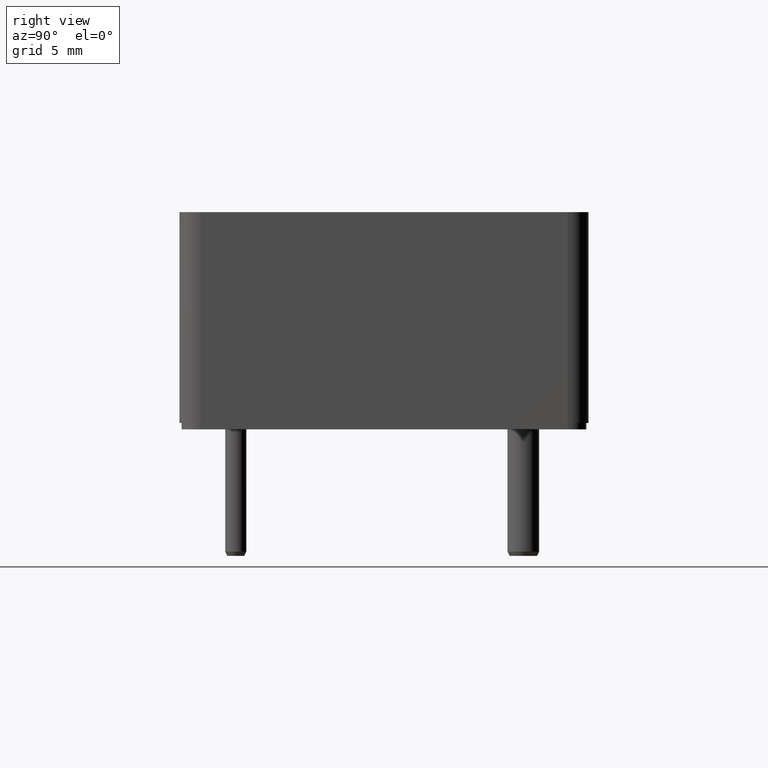
[diagram: clean part render]
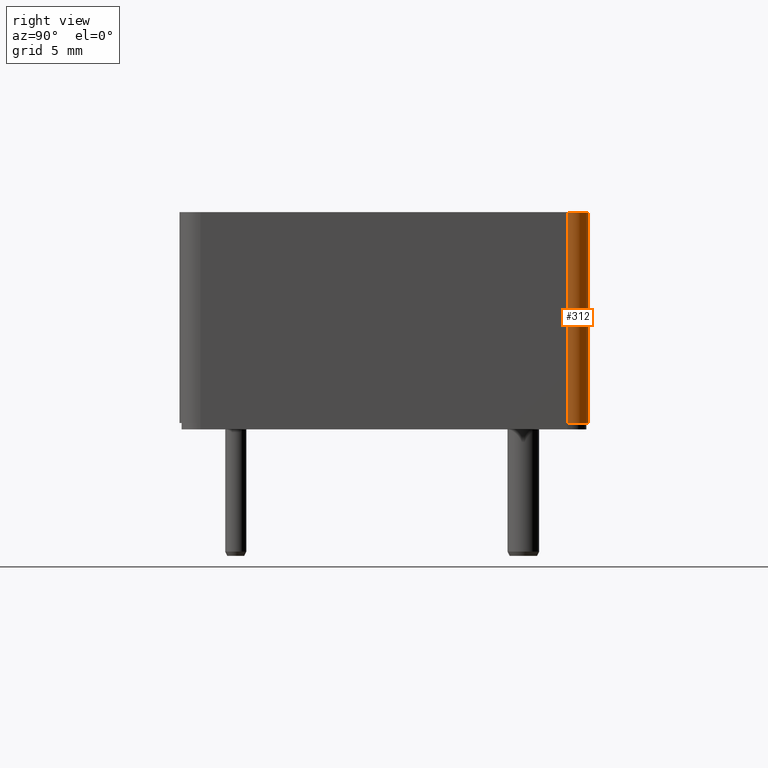
[diagram: same view with one face highlighted and labeled with its STEP entity id]
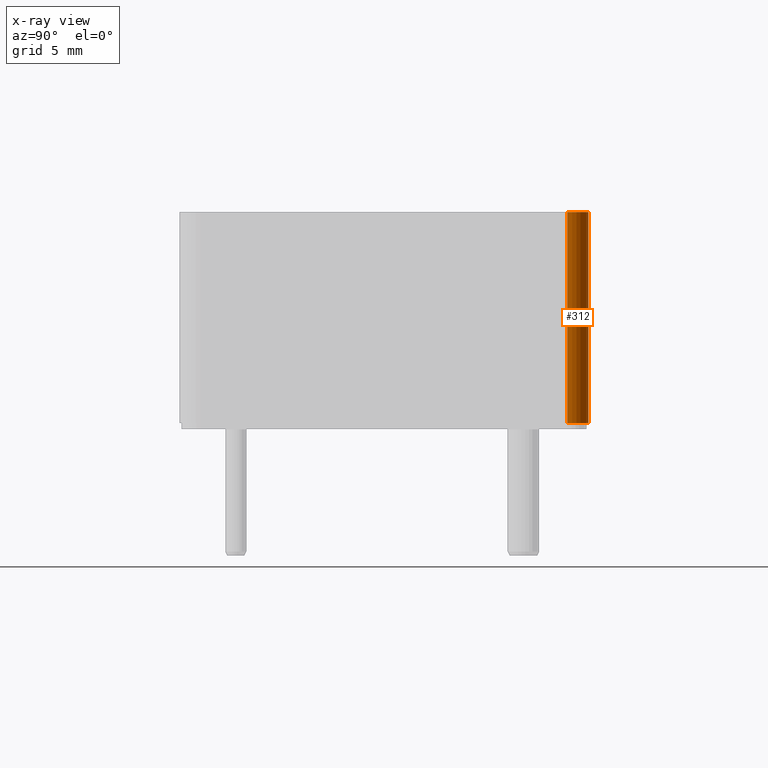
[diagram: x-ray of the same camera — body ghosted, the highlighted face saturated]
A machine part, right view. The second image highlights one B-rep face of the part: STEP entity #312.
The next image is the same camera in x-ray: the body ghosted, the highlighted face saturated — about 0% of this face is hidden behind the body in this view.
In plain terms, the highlighted cylindrical surface (edge-blend (fillet) strip) has radius 1 mm, axis along (-0, 0, 1).
Its self-contained STEP definition (entity closure, byte-faithful):
#312=ADVANCED_FACE('',(#655),#657,.T.);
#655=FACE_BOUND('',#656,.T.);
#656=EDGE_LOOP('',(#860,#861,#862,#863));
#657=CYLINDRICAL_SURFACE('',#658,1.);
#658=AXIS2_PLACEMENT_3D('',#659,#660,#661);
#659=CARTESIAN_POINT('',(10.85,8.7,14.3));
#660=DIRECTION('',(-9.70686797486476E-17,0.,1.));
#661=DIRECTION('',(1.,0.,9.70686797486476E-17));
#860=ORIENTED_EDGE('',*,*,#933,.T.);
#861=ORIENTED_EDGE('',*,*,#948,.F.);
#862=ORIENTED_EDGE('',*,*,#949,.T.);
#863=ORIENTED_EDGE('',*,*,#934,.T.);
#933=EDGE_CURVE('',#1027,#1039,#1041,.T.);
#934=EDGE_CURVE('',#1042,#1027,#1043,.T.);
#948=EDGE_CURVE('',#1062,#1039,#1064,.T.);
#949=EDGE_CURVE('',#1062,#1042,#1065,.F.);
#1027=VERTEX_POINT('',#1253);
#1039=VERTEX_POINT('',#1280);
#1041=CIRCLE('',#1284,1.);
#1042=VERTEX_POINT('',#1288);
#1043=LINE('',#1289,#1290);
#1062=VERTEX_POINT('',#1337);
#1064=LINE('',#1341,#1342);
#1065=CIRCLE('',#1344,1.);
#1253=CARTESIAN_POINT('',(11.85,8.7,0.300000000000001));
#1280=CARTESIAN_POINT('',(10.85,9.7,0.300000000000001));
#1284=AXIS2_PLACEMENT_3D('',#1285,#1286,#1287);
#1285=CARTESIAN_POINT('',(10.85,8.7,0.300000000000001));
#1286=DIRECTION('',(-1.22464679914735E-16,0.,1.));
#1287=DIRECTION('',(1.,0.,1.22464679914735E-16));
#1288=CARTESIAN_POINT('',(11.85,8.7,10.3));
#1289=CARTESIAN_POINT('',(11.85,8.7,10.3));
#1290=VECTOR('',#1291,1.);
#1291=DIRECTION('',(1.77635683940025E-16,1.77635683940025E-16,-1.));
#1337=CARTESIAN_POINT('',(10.85,9.7,10.3));
#1341=CARTESIAN_POINT('',(10.85,9.7,10.3));
#1342=VECTOR('',#1343,1.);
#1343=DIRECTION('',(5.32907051820075E-16,0.,-1.));
#1344=AXIS2_PLACEMENT_3D('',#1345,#1346,#1347);
#1345=CARTESIAN_POINT('',(10.85,8.7,10.3));
#1346=DIRECTION('',(-1.22464679914735E-16,0.,1.));
#1347=DIRECTION('',(1.,0.,1.22464679914735E-16));